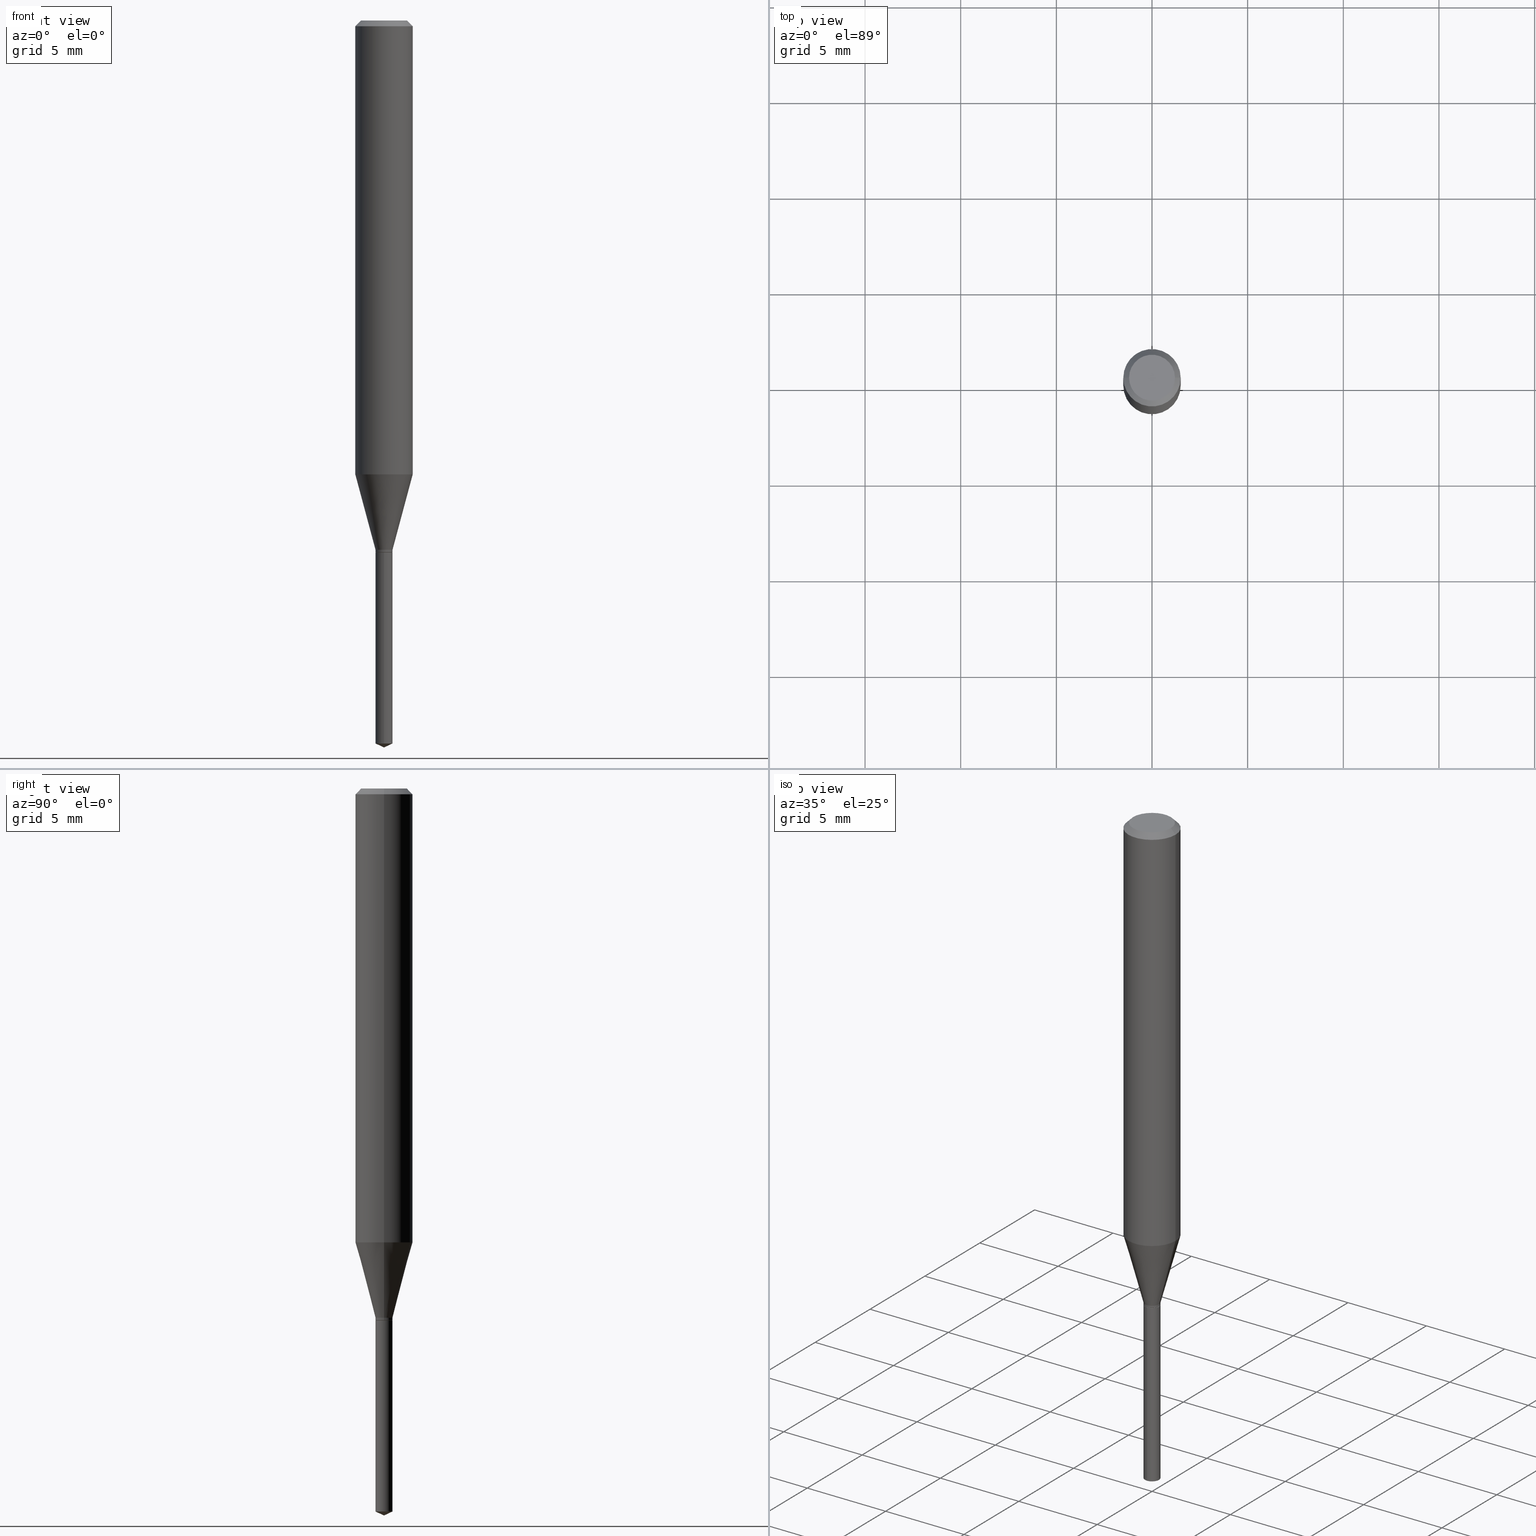
[diagram: canonical four-view strip — front | top / right | iso, engineering-drawing reading convention]
A machine part, canonical four-view strip (front | top / right | iso — engineering-drawing reading convention). The complete STEP part file that produces these views, byte-faithful:
ISO-10303-21;
HEADER;
FILE_DESCRIPTION (( 'STEP AP203' ),
    '1' );
FILE_NAME ('07467.STEP',
    '2024-04-23T21:46:06',
    ( '' ),
    ( '' ),
    'SwSTEP 2.0',
    'SolidWorks 2023',
    '' );
FILE_SCHEMA (( 'CONFIG_CONTROL_DESIGN' ));
ENDSEC;

DATA;
#1 = ORIENTED_EDGE ( 'NONE', *, *, #185, .T. ) ;
#2 = ORGANIZATION ( 'UNSPECIFIED', 'UNSPECIFIED', '' ) ;
#3 = EDGE_CURVE ( 'NONE', #408, #61, #332, .T. ) ;
#4 = CALENDAR_DATE ( 2024, 23, 4 ) ;
#5 = CARTESIAN_POINT ( 'NONE',  ( -0.01750000000000000167, -3.686956050723160015E-15, -1.089199999999999946 ) ) ;
#6 = CC_DESIGN_PERSON_AND_ORGANIZATION_ASSIGNMENT ( #7, #195, ( #340 ) ) ;
#7 = PERSON_AND_ORGANIZATION ( #150, #2 ) ;
#8 = DIRECTION ( 'NONE',  ( -1.000000000000000000, 6.982962677686265922E-15, -4.876176775795935793E-29 ) ) ;
#9 = PERSON_AND_ORGANIZATION ( #150, #2 ) ;
#10 = DIRECTION ( 'NONE',  ( 6.439704144417007476E-15, 0.9063077870366490485, 0.4226182617407009956 ) ) ;
#11 = VECTOR ( 'NONE', #127, 39.37007874015748143 ) ;
#12 = VECTOR ( 'NONE', #136, 39.37007874015748143 ) ;
#13 = LOCAL_TIME ( 17, 46, 6.000000000000000000, #82 ) ;
#14 = UNCERTAINTY_MEASURE_WITH_UNIT (LENGTH_MEASURE( 1.000000000000000082E-05 ), #258, 'distance_accuracy_value', 'NONE');
#15 = DIRECTION ( 'NONE',  ( -6.982962677686268288E-15, -1.000000000000000000, 3.520397390770518557E-15 ) ) ;
#16 = FACE_OUTER_BOUND ( 'NONE', #253, .T. ) ;
#17 = FACE_OUTER_BOUND ( 'NONE', #106, .T. ) ;
#18 = EDGE_LOOP ( 'NONE', ( #305, #204, #210, #284 ) ) ;
#19 = EDGE_CURVE ( 'NONE', #188, #484, #35, .T. ) ;
#20 = VECTOR ( 'NONE', #180, 39.37007874015747433 ) ;
#21 = AXIS2_PLACEMENT_3D ( 'NONE', #401, #34, #105 ) ;
#22 = CARTESIAN_POINT ( 'NONE',  ( -0.01750000000000000167, -3.686956050723160015E-15, -1.093999999999999861 ) ) ;
#23 = EDGE_LOOP ( 'NONE', ( #27, #190 ) ) ;
#24 = CARTESIAN_POINT ( 'NONE',  ( 8.265746106709734507E-48, -1.180129479067563789E-33, -3.380025165646692144E-19 ) ) ;
#25 = DIRECTION ( 'NONE',  ( -2.445468806185136597E-29, 3.491481338843145583E-15, 1.000000000000000000 ) ) ;
#26 = EDGE_CURVE ( 'NONE', #256, #469, #220, .T. ) ;
#27 = ORIENTED_EDGE ( 'NONE', *, *, #478, .F. ) ;
#28 = AXIS2_PLACEMENT_3D ( 'NONE', #425, #202, #119 ) ;
#29 = LINE ( 'NONE', #59, #12 ) ;
#30 = CC_DESIGN_APPROVAL ( #446, ( #169 ) ) ;
#31 = ORIENTED_EDGE ( 'NONE', *, *, #97, .F. ) ;
#32 = DIRECTION ( 'NONE',  ( -2.445468806185136597E-29, 3.491481338843145583E-15, 1.000000000000000000 ) ) ;
#33 = ORIENTED_EDGE ( 'NONE', *, *, #65, .F. ) ;
#34 = DIRECTION ( 'NONE',  ( -2.445468806185136597E-29, 3.491481338843145583E-15, 1.000000000000000000 ) ) ;
#35 = LINE ( 'NONE', #40, #198 ) ;
#36 = CC_DESIGN_PERSON_AND_ORGANIZATION_ASSIGNMENT ( #374, #43, ( #169 ) ) ;
#37 = CIRCLE ( 'NONE', #176, 0.04724000000000000421 ) ;
#38 = ORIENTED_EDGE ( 'NONE', *, *, #354, .T. ) ;
#39 = DIRECTION ( 'NONE',  ( 0.7071067811865453523, -7.319954787623248157E-15, -0.7071067811865496822 ) ) ;
#40 = CARTESIAN_POINT ( 'NONE',  ( -0.05904999999999999832, 3.711095515056362547E-16, -0.01181000000000006871 ) ) ;
#41 = CARTESIAN_POINT ( 'NONE',  ( 2.663604623696850789E-29, -3.802921474267954047E-15, -1.089199999999999946 ) ) ;
#42 = ORIENTED_EDGE ( 'NONE', *, *, #321, .T. ) ;
#43 = PERSON_AND_ORGANIZATION_ROLE ( 'design_supplier' ) ;
#44 = DIRECTION ( 'NONE',  ( -2.438088387897960049E-29, 3.491481338843145188E-15, 1.000000000000000000 ) ) ;
#45 = VECTOR ( 'NONE', #416, 39.37007874015748143 ) ;
#46 = EDGE_CURVE ( 'NONE', #301, #327, #443, .T. ) ;
#47 = DATE_TIME_ROLE ( 'classification_date' ) ;
#48 = CARTESIAN_POINT ( 'NONE',  ( -0.01750000000000000167, 1.243449787580175444E-16, -8.608136407946085539E-31 ) ) ;
#49 = EDGE_CURVE ( 'NONE', #178, #68, #463, .T. ) ;
#50 = SHAPE_DEFINITION_REPRESENTATION ( #164, #248 ) ;
#51 = DIRECTION ( 'NONE',  ( -2.445468806185136597E-29, 3.491481338843145583E-15, 1.000000000000000000 ) ) ;
#52 = ADVANCED_FACE ( 'NONE', ( #16 ), #153, .T. ) ;
#53 = DIRECTION ( 'NONE',  ( -2.445468806185136597E-29, 3.491481338843145583E-15, 1.000000000000000000 ) ) ;
#54 = AXIS2_PLACEMENT_3D ( 'NONE', #297, #116, #335 ) ;
#55 = CIRCLE ( 'NONE', #361, 0.01750000000000000167 ) ;
#56 = CARTESIAN_POINT ( 'NONE',  ( 0.04724000000000000421, -3.852183633974369345E-16, -3.380025165621689721E-19 ) ) ;
#57 = DIRECTION ( 'NONE',  ( -2.445470214571802116E-29, 3.491479321953280158E-15, 1.000000000000000000 ) ) ;
#58 = ORIENTED_EDGE ( 'NONE', *, *, #464, .T. ) ;
#59 = CARTESIAN_POINT ( 'NONE',  ( 0.05905000000000005383, -4.123439461173744271E-16, 2.879382386107502672E-30 ) ) ;
#60 = DIRECTION ( 'NONE',  ( -6.982962677686268288E-15, -1.000000000000000000, 3.520397390770518557E-15 ) ) ;
#61 = VERTEX_POINT ( 'NONE', #381 ) ;
#62 = LINE ( 'NONE', #391, #430 ) ;
#63 = ORIENTED_EDGE ( 'NONE', *, *, #330, .T. ) ;
#64 = CYLINDRICAL_SURFACE ( 'NONE', #302, 0.01750000000000000167 ) ;
#65 = EDGE_CURVE ( 'NONE', #282, #137, #384, .T. ) ;
#66 = FACE_OUTER_BOUND ( 'NONE', #482, .T. ) ;
#67 = VERTEX_POINT ( 'NONE', #56 ) ;
#68 = VERTEX_POINT ( 'NONE', #5 ) ;
#69 = CARTESIAN_POINT ( 'NONE',  ( -1.222018468594828905E-16, -0.01750000000000382500, -1.094499999999999806 ) ) ;
#70 = ORIENTED_EDGE ( 'NONE', *, *, #389, .T. ) ;
#71 = APPLICATION_PROTOCOL_DEFINITION ( 'international standard', 'config_control_design', 1994, #249 ) ;
#72 = AXIS2_PLACEMENT_3D ( 'NONE', #162, #457, #15 ) ;
#73 = ORIENTED_EDGE ( 'NONE', *, *, #46, .T. ) ;
#74 =( GEOMETRIC_REPRESENTATION_CONTEXT ( 3 ) GLOBAL_UNCERTAINTY_ASSIGNED_CONTEXT ( ( #14 ) ) GLOBAL_UNIT_ASSIGNED_CONTEXT ( ( #258, #410, #184 ) ) REPRESENTATION_CONTEXT ( 'NONE', 'WORKASPACE' ) );
#75 = EDGE_CURVE ( 'NONE', #96, #178, #269, .T. ) ;
#76 = ORIENTED_EDGE ( 'NONE', *, *, #389, .F. ) ;
#77 = PERSON_AND_ORGANIZATION ( #150, #2 ) ;
#78 = FACE_OUTER_BOUND ( 'NONE', #324, .T. ) ;
#79 = APPROVAL_ROLE ( '' ) ;
#80 = CARTESIAN_POINT ( 'NONE',  ( 2.676565608369631794E-29, -3.821426325363822773E-15, -1.094499999999999806 ) ) ;
#81 = CIRCLE ( 'NONE', #352, 0.04724000000000000421 ) ;
#82 = COORDINATED_UNIVERSAL_TIME_OFFSET ( 5, 0, .BEHIND. ) ;
#83 = CARTESIAN_POINT ( 'NONE',  ( 2.888098660104663328E-31, -4.123439461173779030E-17, -0.01181000000000006871 ) ) ;
#84 = CC_DESIGN_DATE_AND_TIME_ASSIGNMENT ( #380, #451, ( #372 ) ) ;
#85 = PLANE ( 'NONE',  #124 ) ;
#86 = PLANE ( 'NONE',  #235 ) ;
#87 = VECTOR ( 'NONE', #163, 39.37007874015748143 ) ;
#88 = CONICAL_SURFACE ( 'NONE', #475, 0.01750000000000000167, 0.2617993877991500740 ) ;
#89 = FACE_OUTER_BOUND ( 'NONE', #367, .T. ) ;
#90 = DIRECTION ( 'NONE',  ( -2.445470214571802116E-29, 3.491479321953280158E-15, 1.000000000000000000 ) ) ;
#91 = ADVANCED_FACE ( 'NONE', ( #194 ), #86, .F. ) ;
#92 = CARTESIAN_POINT ( 'NONE',  ( 2.663604623696850789E-29, -3.802921474267954047E-15, -1.089199999999999946 ) ) ;
#93 = EDGE_CURVE ( 'NONE', #96, #101, #360, .T. ) ;
#94 = CONICAL_SURFACE ( 'NONE', #279, 0.05904999999999999832, 0.7853981633974452814 ) ;
#95 = CARTESIAN_POINT ( 'NONE',  ( 1.243449787580539552E-16, 0.01749999999999617487, -1.094499999999999806 ) ) ;
#96 = VERTEX_POINT ( 'NONE', #454 ) ;
#97 = EDGE_CURVE ( 'NONE', #68, #327, #429, .T. ) ;
#98 = CARTESIAN_POINT ( 'NONE',  ( 3.658667988020872822E-29, -5.223602213574301462E-15, -1.496099999999999985 ) ) ;
#99 = ORIENTED_EDGE ( 'NONE', *, *, #152, .F. ) ;
#100 = DIRECTION ( 'NONE',  ( 1.000000000000000000, -6.982962677686276966E-15, 0.000000000000000000 ) ) ;
#101 = VERTEX_POINT ( 'NONE', #275 ) ;
#102 = CARTESIAN_POINT ( 'NONE',  ( -0.05904999999999999832, -1.231796185012244418E-15, -0.01181000000000006871 ) ) ;
#103 = ADVANCED_FACE ( 'NONE', ( #199 ), #426, .T. ) ;
#104 = ORIENTED_EDGE ( 'NONE', *, *, #120, .T. ) ;
#105 = DIRECTION ( 'NONE',  ( 1.000000000000000000, -6.982962677686276966E-15, 0.000000000000000000 ) ) ;
#106 = EDGE_LOOP ( 'NONE', ( #215, #168, #186, #174 ) ) ;
#107 = ADVANCED_FACE ( 'NONE', ( #78 ), #94, .T. ) ;
#108 = EDGE_LOOP ( 'NONE', ( #288, #363, #181 ) ) ;
#109 = EDGE_CURVE ( 'NONE', #137, #282, #423, .T. ) ;
#110 = LINE ( 'NONE', #69, #45 ) ;
#111 = AXIS2_PLACEMENT_3D ( 'NONE', #83, #51, #312 ) ;
#112 = EDGE_LOOP ( 'NONE', ( #104, #140, #223, #299 ) ) ;
#113 = CONICAL_SURFACE ( 'NONE', #353, 0.05904999999999999832, 0.7853981633974452814 ) ;
#114 = CC_DESIGN_PERSON_AND_ORGANIZATION_ASSIGNMENT ( #161, #342, ( #372 ) ) ;
#115 = COORDINATED_UNIVERSAL_TIME_OFFSET ( 5, 0, .BEHIND. ) ;
#116 = DIRECTION ( 'NONE',  ( -2.445470214571802116E-29, 3.491479321953280158E-15, 1.000000000000000000 ) ) ;
#117 = APPLICATION_CONTEXT ( 'configuration controlled 3d designs of mechanical parts and assemblies' ) ;
#118 = CALENDAR_DATE ( 2024, 23, 4 ) ;
#119 = DIRECTION ( 'NONE',  ( 1.000000000000000000, -6.982962677686276966E-15, 0.000000000000000000 ) ) ;
#120 = EDGE_CURVE ( 'NONE', #61, #408, #393, .T. ) ;
#121 = APPROVAL_ROLE ( '' ) ;
#122 = CARTESIAN_POINT ( 'NONE',  ( -1.222018468594828905E-16, -0.01750000000000382500, -1.094499999999999806 ) ) ;
#123 = ADVANCED_FACE ( 'NONE', ( #231 ), #85, .F. ) ;
#124 = AXIS2_PLACEMENT_3D ( 'NONE', #347, #383, #8 ) ;
#125 = SECURITY_CLASSIFICATION ( '', '', #191 ) ;
#126 = DIRECTION ( 'NONE',  ( -2.445468806185136597E-29, 3.491481338843145583E-15, 1.000000000000000000 ) ) ;
#127 = DIRECTION ( 'NONE',  ( -2.445468806185136877E-29, 3.491481338843145188E-15, 1.000000000000000000 ) ) ;
#128 = EDGE_CURVE ( 'NONE', #256, #282, #160, .T. ) ;
#129 = CARTESIAN_POINT ( 'NONE',  ( 2.676565608369631794E-29, -3.821426325363822773E-15, -1.094499999999999806 ) ) ;
#130 = CLOSED_SHELL ( 'NONE', ( #179, #274, #134, #165, #403 ) ) ;
#131 = FACE_OUTER_BOUND ( 'NONE', #18, .T. ) ;
#132 = ORIENTED_EDGE ( 'NONE', *, *, #464, .F. ) ;
#133 = DIRECTION ( 'NONE',  ( -6.328713451373352024E-15, -0.9063077870366461619, 0.4226182617407073239 ) ) ;
#134 = ADVANCED_FACE ( 'NONE', ( #309 ), #449, .T. ) ;
#135 = EDGE_LOOP ( 'NONE', ( #208, #373, #38, #33 ) ) ;
#136 = DIRECTION ( 'NONE',  ( -2.445468806185136877E-29, 3.491481338843145188E-15, 1.000000000000000000 ) ) ;
#137 = VERTEX_POINT ( 'NONE', #122 ) ;
#138 = CONICAL_SURFACE ( 'NONE', #212, 0.01700000000000000122, 0.7853981633974119747 ) ;
#139 = DIRECTION ( 'NONE',  ( -6.982962677686265922E-15, -1.000000000000000000, 0.000000000000000000 ) ) ;
#140 = ORIENTED_EDGE ( 'NONE', *, *, #412, .T. ) ;
#141 = CARTESIAN_POINT ( 'NONE',  ( 8.265746106709734507E-48, -1.180129479067563789E-33, -3.380025165646692144E-19 ) ) ;
#142 = EDGE_CURVE ( 'NONE', #293, #256, #419, .T. ) ;
#143 = PLANE ( 'NONE',  #213 ) ;
#144 = ORIENTED_EDGE ( 'NONE', *, *, #412, .F. ) ;
#145 = AXIS2_PLACEMENT_3D ( 'NONE', #196, #229, #343 ) ;
#146 = LINE ( 'NONE', #189, #20 ) ;
#147 = CC_DESIGN_PERSON_AND_ORGANIZATION_ASSIGNMENT ( #455, #270, ( #169 ) ) ;
#148 = DIRECTION ( 'NONE',  ( -2.445468806185136597E-29, 3.491481338843145583E-15, 1.000000000000000000 ) ) ;
#149 = ORIENTED_EDGE ( 'NONE', *, *, #75, .F. ) ;
#150 = PERSON ( 'UNSPECIFIED', 'UNSPECIFIED', 'UNSPECIFIED', ('UNSPECIFIED'), ('UNSPECIFIED'), ('UNSPECIFIED') ) ;
#151 = DIRECTION ( 'NONE',  ( -2.445468806185136877E-29, 3.491481338843145188E-15, 1.000000000000000000 ) ) ;
#152 = EDGE_CURVE ( 'NONE', #484, #436, #183, .T. ) ;
#153 = CONICAL_SURFACE ( 'NONE', #175, 0.01700000000000000122, 0.7853981633974119747 ) ;
#154 = MECHANICAL_CONTEXT ( 'NONE', #249, 'mechanical' ) ;
#155 = VECTOR ( 'NONE', #346, 39.37007874015748143 ) ;
#156 = ORIENTED_EDGE ( 'NONE', *, *, #364, .F. ) ;
#157 = DATE_AND_TIME ( #386, #294 ) ;
#158 = CARTESIAN_POINT ( 'NONE',  ( 2.676565608369631794E-29, -3.821426325363822773E-15, -1.094499999999999806 ) ) ;
#159 = EDGE_CURVE ( 'NONE', #178, #301, #376, .T. ) ;
#160 = LINE ( 'NONE', #315, #155 ) ;
#161 = PERSON_AND_ORGANIZATION ( #150, #2 ) ;
#162 = CARTESIAN_POINT ( 'NONE',  ( -9.261968845786000133E-28, 1.322362114038720264E-13, 37.87397874015748300 ) ) ;
#163 = DIRECTION ( 'NONE',  ( -0.7071067811865218156, 7.493145998870261075E-15, 0.7071067811865732189 ) ) ;
#164 = PRODUCT_DEFINITION_SHAPE ( 'NONE', 'NONE',  #372 ) ;
#165 = ADVANCED_FACE ( 'NONE', ( #281 ), #64, .T. ) ;
#166 = DIRECTION ( 'NONE',  ( -1.000000000000000000, 6.982962677686266711E-15, 0.000000000000000000 ) ) ;
#167 = DIRECTION ( 'NONE',  ( -2.445468806185136597E-29, 3.491481338843145583E-15, 1.000000000000000000 ) ) ;
#168 = ORIENTED_EDGE ( 'NONE', *, *, #128, .T. ) ;
#169 = PRODUCT_DEFINITION_FORMATION_WITH_SPECIFIED_SOURCE ( 'ANY', '', #340, .NOT_KNOWN. ) ;
#170 = CARTESIAN_POINT ( 'NONE',  ( 3.638710470486883638E-29, -5.195112609003218678E-15, -1.487939615982287300 ) ) ;
#171 = DIRECTION ( 'NONE',  ( -2.445468806185136597E-29, 3.491481338843145583E-15, 1.000000000000000000 ) ) ;
#172 = EDGE_LOOP ( 'NONE', ( #440, #242, #73, #31 ) ) ;
#173 = LINE ( 'NONE', #323, #237 ) ;
#174 = ORIENTED_EDGE ( 'NONE', *, *, #354, .F. ) ;
#175 = AXIS2_PLACEMENT_3D ( 'NONE', #277, #53, #314 ) ;
#176 = AXIS2_PLACEMENT_3D ( 'NONE', #24, #171, #319 ) ;
#177 = LINE ( 'NONE', #326, #368 ) ;
#178 = VERTEX_POINT ( 'NONE', #22 ) ;
#179 = ADVANCED_FACE ( 'NONE', ( #17 ), #211, .T. ) ;
#180 = DIRECTION ( 'NONE',  ( -0.2588190451025213501, 5.211531920934551042E-15, 0.9659258262890682012 ) ) ;
#181 = ORIENTED_EDGE ( 'NONE', *, *, #26, .F. ) ;
#182 = ORIENTED_EDGE ( 'NONE', *, *, #19, .F. ) ;
#183 = CIRCLE ( 'NONE', #111, 0.05904999999999999832 ) ;
#184 =( NAMED_UNIT ( * ) SI_UNIT ( $, .STERADIAN. ) SOLID_ANGLE_UNIT ( ) );
#185 = EDGE_CURVE ( 'NONE', #61, #436, #29, .T. ) ;
#186 = ORIENTED_EDGE ( 'NONE', *, *, #109, .F. ) ;
#187 = CARTESIAN_POINT ( 'NONE',  ( 2.888098660104663328E-31, -4.123439461173779030E-17, -0.01181000000000006871 ) ) ;
#188 = VERTEX_POINT ( 'NONE', #437 ) ;
#189 = CARTESIAN_POINT ( 'NONE',  ( -0.01750000000000000167, -3.678576495509936798E-15, -1.089199999999999946 ) ) ;
#190 = ORIENTED_EDGE ( 'NONE', *, *, #93, .F. ) ;
#191 = SECURITY_CLASSIFICATION_LEVEL ( 'unclassified' ) ;
#192 = CARTESIAN_POINT ( 'NONE',  ( 0.000000000000000000, 0.000000000000000000, 0.000000000000000000 ) ) ;
#193 = CALENDAR_DATE ( 2024, 23, 4 ) ;
#194 = FACE_OUTER_BOUND ( 'NONE', #23, .T. ) ;
#195 = PERSON_AND_ORGANIZATION_ROLE ( 'design_owner' ) ;
#196 = CARTESIAN_POINT ( 'NONE',  ( 2.284393818935379026E-29, -3.261508946345431277E-15, -0.9341332889455130628 ) ) ;
#197 = APPROVAL_DATE_TIME ( #265, #446 ) ;
#198 = VECTOR ( 'NONE', #259, 39.37007874015748143 ) ;
#199 = FACE_OUTER_BOUND ( 'NONE', #473, .T. ) ;
#200 = AXIS2_PLACEMENT_3D ( 'NONE', #209, #207, #390 ) ;
#201 = CIRCLE ( 'NONE', #21, 0.01750000000000000167 ) ;
#202 = DIRECTION ( 'NONE',  ( -2.445468806185136597E-29, 3.491481338843145583E-15, 1.000000000000000000 ) ) ;
#203 = DIRECTION ( 'NONE',  ( -6.982962677686265922E-15, -1.000000000000000000, 0.000000000000000000 ) ) ;
#204 = ORIENTED_EDGE ( 'NONE', *, *, #364, .T. ) ;
#205 = ADVANCED_FACE ( 'NONE', ( #433 ), #432, .T. ) ;
#206 = CARTESIAN_POINT ( 'NONE',  ( 0.000000000000000000, 0.000000000000000000, 0.000000000000000000 ) ) ;
#207 = DIRECTION ( 'NONE',  ( -2.445468806185136597E-29, 3.491481338843145583E-15, 1.000000000000000000 ) ) ;
#208 = ORIENTED_EDGE ( 'NONE', *, *, #128, .F. ) ;
#209 = CARTESIAN_POINT ( 'NONE',  ( 2.888098660104663328E-31, -4.123439461173779030E-17, -0.01181000000000006871 ) ) ;
#210 = ORIENTED_EDGE ( 'NONE', *, *, #120, .F. ) ;
#211 = CYLINDRICAL_SURFACE ( 'NONE', #262, 0.01750000000000000167 ) ;
#212 = AXIS2_PLACEMENT_3D ( 'NONE', #392, #351, #431 ) ;
#213 = AXIS2_PLACEMENT_3D ( 'NONE', #483, #290, #444 ) ;
#214 = CARTESIAN_POINT ( 'NONE',  ( -0.05905000000000010241, -2.841933460879091389E-15, -0.9341332889455130628 ) ) ;
#215 = ORIENTED_EDGE ( 'NONE', *, *, #266, .T. ) ;
#216 = FACE_OUTER_BOUND ( 'NONE', #264, .T. ) ;
#217 = EDGE_LOOP ( 'NONE', ( #350, #224, #404, #417 ) ) ;
#218 = FACE_OUTER_BOUND ( 'NONE', #480, .T. ) ;
#219 = ORIENTED_EDGE ( 'NONE', *, *, #109, .T. ) ;
#220 = CIRCLE ( 'NONE', #54, 0.01750000000000000167 ) ;
#221 = CC_DESIGN_APPROVAL ( #396, ( #372 ) ) ;
#222 = CARTESIAN_POINT ( 'NONE',  ( 0.05904999999999999832, -4.535783407291118600E-16, -0.01181000000000006871 ) ) ;
#223 = ORIENTED_EDGE ( 'NONE', *, *, #292, .F. ) ;
#224 = ORIENTED_EDGE ( 'NONE', *, *, #49, .T. ) ;
#225 = CARTESIAN_POINT ( 'NONE',  ( 0.000000000000000000, 0.000000000000000000, 0.000000000000000000 ) ) ;
#226 = CARTESIAN_POINT ( 'NONE',  ( 2.888098660104663328E-31, -4.123439461173779030E-17, -0.01181000000000006871 ) ) ;
#227 = EDGE_CURVE ( 'NONE', #293, #469, #62, .T. ) ;
#228 = AXIS2_PLACEMENT_3D ( 'NONE', #41, #438, #100 ) ;
#229 = DIRECTION ( 'NONE',  ( -2.445468806185136597E-29, 3.491481338843145583E-15, 1.000000000000000000 ) ) ;
#230 = DATE_AND_TIME ( #193, #13 ) ;
#231 = FACE_OUTER_BOUND ( 'NONE', #329, .T. ) ;
#232 = EDGE_CURVE ( 'NONE', #327, #68, #271, .T. ) ;
#233 = DIRECTION ( 'NONE',  ( -2.445468806185136597E-29, 3.491481338843145583E-15, 1.000000000000000000 ) ) ;
#234 = DIRECTION ( 'NONE',  ( 0.000000000000000000, 0.000000000000000000, 1.000000000000000000 ) ) ;
#235 = AXIS2_PLACEMENT_3D ( 'NONE', #158, #44, #344 ) ;
#236 = DIRECTION ( 'NONE',  ( 1.000000000000000000, -6.982962677686274599E-15, 0.000000000000000000 ) ) ;
#237 = VECTOR ( 'NONE', #250, 39.37007874015747433 ) ;
#238 = CARTESIAN_POINT ( 'NONE',  ( -9.261968845786000133E-28, 1.322362114038720264E-13, 37.87397874015748300 ) ) ;
#239 = DIRECTION ( 'NONE',  ( -6.982962677686265922E-15, -1.000000000000000000, 0.000000000000000000 ) ) ;
#240 = ADVANCED_FACE ( 'NONE', ( #359 ), #138, .T. ) ;
#241 = DIRECTION ( 'NONE',  ( 1.000000000000000000, -6.982962677686276966E-15, 0.000000000000000000 ) ) ;
#242 = ORIENTED_EDGE ( 'NONE', *, *, #159, .T. ) ;
#243 = CIRCLE ( 'NONE', #200, 0.05904999999999999832 ) ;
#244 = AXIS2_PLACEMENT_3D ( 'NONE', #206, #167, #278 ) ;
#245 = LOCAL_TIME ( 17, 46, 6.000000000000000000, #115 ) ;
#246 = CARTESIAN_POINT ( 'NONE',  ( 0.000000000000000000, 0.000000000000000000, 0.000000000000000000 ) ) ;
#247 = ORIENTED_EDGE ( 'NONE', *, *, #65, .T. ) ;
#248 = ADVANCED_BREP_SHAPE_REPRESENTATION ( '07467', ( #462, #466, #450 ), #74 ) ;
#249 = APPLICATION_CONTEXT ( 'configuration controlled 3d designs of mechanical parts and assemblies' ) ;
#250 = DIRECTION ( 'NONE',  ( 0.2588190451025213501, 1.565188264969621968E-15, 0.9659258262890682012 ) ) ;
#251 = ORIENTED_EDGE ( 'NONE', *, *, #296, .F. ) ;
#252 = LINE ( 'NONE', #295, #311 ) ;
#253 = EDGE_LOOP ( 'NONE', ( #445, #452, #322, #337 ) ) ;
#254 = AXIS2_PLACEMENT_3D ( 'NONE', #298, #486, #481 ) ;
#255 = LENGTH_MEASURE_WITH_UNIT ( LENGTH_MEASURE( 0.02539999999999999897 ), #300 );
#256 = VERTEX_POINT ( 'NONE', #476 ) ;
#257 = ADVANCED_FACE ( 'NONE', ( #131 ), #88, .T. ) ;
#258 =( CONVERSION_BASED_UNIT ( 'INCH', #255 ) LENGTH_UNIT ( ) NAMED_UNIT ( #465 ) );
#259 = DIRECTION ( 'NONE',  ( -0.7071067811865453523, 2.468850131082234184E-15, -0.7071067811865496822 ) ) ;
#260 = CARTESIAN_POINT ( 'NONE',  ( 2.284393818935379026E-29, -3.261508946345431277E-15, -0.9341332889455130628 ) ) ;
#261 = VECTOR ( 'NONE', #151, 39.37007874015748143 ) ;
#262 = AXIS2_PLACEMENT_3D ( 'NONE', #316, #57, #203 ) ;
#263 = DIRECTION ( 'NONE',  ( 0.7071067811865218156, -2.468850131081987665E-15, 0.7071067811865732189 ) ) ;
#264 = EDGE_LOOP ( 'NONE', ( #156, #471, #42, #413 ) ) ;
#265 = DATE_AND_TIME ( #118, #245 ) ;
#266 = EDGE_CURVE ( 'NONE', #469, #256, #55, .T. ) ;
#267 = CARTESIAN_POINT ( 'NONE',  ( 3.658668015054778287E-29, -5.223602213574301462E-15, -1.496099999999999985 ) ) ;
#268 = PERSON_AND_ORGANIZATION ( #150, #2 ) ;
#269 = LINE ( 'NONE', #379, #87 ) ;
#270 = PERSON_AND_ORGANIZATION_ROLE ( 'creator' ) ;
#271 = CIRCLE ( 'NONE', #405, 0.01750000000000000167 ) ;
#272 = CARTESIAN_POINT ( 'NONE',  ( 2.676565608369631794E-29, -3.821426325363822773E-15, -1.094499999999999806 ) ) ;
#273 = AXIS2_PLACEMENT_3D ( 'NONE', #328, #32, #439 ) ;
#274 = ADVANCED_FACE ( 'NONE', ( #89 ), #385, .T. ) ;
#275 = CARTESIAN_POINT ( 'NONE',  ( 0.01700000000000000122, -3.940136690884488960E-15, -1.094499999999999806 ) ) ;
#276 = APPLICATION_PROTOCOL_DEFINITION ( 'international standard', 'config_control_design', 1994, #117 ) ;
#277 = CARTESIAN_POINT ( 'NONE',  ( 2.676565608369631794E-29, -3.821426325363822773E-15, -1.094499999999999806 ) ) ;
#278 = DIRECTION ( 'NONE',  ( 1.000000000000000000, -6.982962677686265922E-15, 4.876176775795936353E-29 ) ) ;
#279 = AXIS2_PLACEMENT_3D ( 'NONE', #226, #339, #166 ) ;
#280 = DIRECTION ( 'NONE',  ( 1.000000000000000000, -6.982962677686276966E-15, 0.000000000000000000 ) ) ;
#281 = FACE_OUTER_BOUND ( 'NONE', #135, .T. ) ;
#282 = VERTEX_POINT ( 'NONE', #95 ) ;
#283 = DIRECTION ( 'NONE',  ( 1.000000000000000000, -6.982962677686276966E-15, 0.000000000000000000 ) ) ;
#284 = ORIENTED_EDGE ( 'NONE', *, *, #321, .F. ) ;
#285 = VECTOR ( 'NONE', #10, 39.37007874015748854 ) ;
#286 = DESIGN_CONTEXT ( 'detailed design', #117, 'design' ) ;
#287 = DIRECTION ( 'NONE',  ( -2.445468806185136597E-29, 3.491481338843145583E-15, 1.000000000000000000 ) ) ;
#288 = ORIENTED_EDGE ( 'NONE', *, *, #142, .F. ) ;
#289 = PRODUCT_RELATED_PRODUCT_CATEGORY ( 'detail', '', ( #340 ) ) ;
#290 = DIRECTION ( 'NONE',  ( 2.445470214571801836E-29, -3.491479321953280158E-15, -1.000000000000000000 ) ) ;
#291 = CARTESIAN_POINT ( 'NONE',  ( 0.05904999999999999832, -4.463468013801466955E-16, -0.01181000000000006871 ) ) ;
#292 = EDGE_CURVE ( 'NONE', #436, #484, #243, .T. ) ;
#293 = VERTEX_POINT ( 'NONE', #98 ) ;
#294 = LOCAL_TIME ( 17, 46, 6.000000000000000000, #308 ) ;
#295 = CARTESIAN_POINT ( 'NONE',  ( -0.05905000000000005383, 4.195754854663395423E-16, -2.904631170795524694E-30 ) ) ;
#296 = EDGE_CURVE ( 'NONE', #188, #67, #37, .T. ) ;
#297 = CARTESIAN_POINT ( 'NONE',  ( 3.638710470486883638E-29, -5.195112609003218678E-15, -1.487939615982287300 ) ) ;
#298 = CARTESIAN_POINT ( 'NONE',  ( 0.000000000000000000, 0.000000000000000000, 0.000000000000000000 ) ) ;
#299 = ORIENTED_EDGE ( 'NONE', *, *, #185, .F. ) ;
#300 =( LENGTH_UNIT ( ) NAMED_UNIT ( * ) SI_UNIT ( $, .METRE. ) );
#301 = VERTEX_POINT ( 'NONE', #470 ) ;
#302 = AXIS2_PLACEMENT_3D ( 'NONE', #129, #349, #239 ) ;
#303 = LOCAL_TIME ( 17, 46, 6.000000000000000000, #424 ) ;
#304 = APPROVAL_DATE_TIME ( #157, #396 ) ;
#305 = ORIENTED_EDGE ( 'NONE', *, *, #232, .T. ) ;
#306 = DIRECTION ( 'NONE',  ( 1.000000000000000000, 0.000000000000000000, 0.000000000000000000 ) ) ;
#307 = DIRECTION ( 'NONE',  ( -6.982962677686265922E-15, -1.000000000000000000, 0.000000000000000000 ) ) ;
#308 = COORDINATED_UNIVERSAL_TIME_OFFSET ( 5, 0, .BEHIND. ) ;
#309 = FACE_OUTER_BOUND ( 'NONE', #108, .T. ) ;
#310 = AXIS2_PLACEMENT_3D ( 'NONE', #246, #397, #356 ) ;
#311 = VECTOR ( 'NONE', #442, 39.37007874015748143 ) ;
#312 = DIRECTION ( 'NONE',  ( 1.000000000000000000, -6.982962677686266711E-15, 0.000000000000000000 ) ) ;
#313 = CC_DESIGN_APPROVAL ( #409, ( #125 ) ) ;
#314 = DIRECTION ( 'NONE',  ( 1.000000000000000000, -6.982962677686274599E-15, 0.000000000000000000 ) ) ;
#315 = CARTESIAN_POINT ( 'NONE',  ( 1.243449787580442917E-16, 0.01749999999999617833, -1.094499999999999806 ) ) ;
#316 = CARTESIAN_POINT ( 'NONE',  ( 2.676565608369631794E-29, -3.821426325363822773E-15, -1.094499999999999806 ) ) ;
#317 = AXIS2_PLACEMENT_3D ( 'NONE', #80, #375, #388 ) ;
#318 = ADVANCED_FACE ( 'NONE', ( #320 ), #472, .T. ) ;
#319 = DIRECTION ( 'NONE',  ( 1.000000000000000000, -6.982962677686266711E-15, 4.876185090822587894E-29 ) ) ;
#320 = FACE_OUTER_BOUND ( 'NONE', #172, .T. ) ;
#321 = EDGE_CURVE ( 'NONE', #327, #61, #173, .T. ) ;
#322 = ORIENTED_EDGE ( 'NONE', *, *, #422, .F. ) ;
#323 = CARTESIAN_POINT ( 'NONE',  ( 0.01750000000000000167, -3.925123321127464030E-15, -1.089199999999999946 ) ) ;
#324 = EDGE_LOOP ( 'NONE', ( #132, #251, #358, #487 ) ) ;
#325 = AXIS2_PLACEMENT_3D ( 'NONE', #192, #233, #467 ) ;
#326 = CARTESIAN_POINT ( 'NONE',  ( 0.01700000000000000122, -3.940136690884488960E-15, -1.094499999999999806 ) ) ;
#327 = VERTEX_POINT ( 'NONE', #399 ) ;
#328 = CARTESIAN_POINT ( 'NONE',  ( 2.676565608369631794E-29, -3.821426325363822773E-15, -1.094499999999999806 ) ) ;
#329 = EDGE_LOOP ( 'NONE', ( #331, #70 ) ) ;
#330 = EDGE_CURVE ( 'NONE', #101, #301, #177, .T. ) ;
#331 = ORIENTED_EDGE ( 'NONE', *, *, #296, .T. ) ;
#332 = CIRCLE ( 'NONE', #474, 0.05905000000000010935 ) ;
#333 = ORIENTED_EDGE ( 'NONE', *, *, #142, .T. ) ;
#334 = DIRECTION ( 'NONE',  ( -1.000000000000000000, 6.982962677686266711E-15, 0.000000000000000000 ) ) ;
#335 = DIRECTION ( 'NONE',  ( -6.982962677686265922E-15, -1.000000000000000000, 0.000000000000000000 ) ) ;
#336 = APPROVAL_DATE_TIME ( #230, #409 ) ;
#337 = ORIENTED_EDGE ( 'NONE', *, *, #330, .F. ) ;
#338 = CALENDAR_DATE ( 2024, 23, 4 ) ;
#339 = DIRECTION ( 'NONE',  ( 2.445468806185136597E-29, -3.491481338843145583E-15, -1.000000000000000000 ) ) ;
#340 = PRODUCT ( '07467', '07467', '', ( #154 ) ) ;
#341 = ADVANCED_FACE ( 'NONE', ( #479 ), #371, .T. ) ;
#342 = PERSON_AND_ORGANIZATION_ROLE ( 'creator' ) ;
#343 = DIRECTION ( 'NONE',  ( 1.000000000000000000, -6.982962677686267499E-15, 0.000000000000000000 ) ) ;
#344 = DIRECTION ( 'NONE',  ( 1.000000000000000000, -6.982962677686265922E-15, 4.876176775795935793E-29 ) ) ;
#345 = COORDINATED_UNIVERSAL_TIME_OFFSET ( 5, 0, .BEHIND. ) ;
#346 = DIRECTION ( 'NONE',  ( -2.445470214571802396E-29, 3.491479321953280158E-15, 1.000000000000000000 ) ) ;
#347 = CARTESIAN_POINT ( 'NONE',  ( 4.132873053354867254E-48, -5.900647395337818946E-34, -1.690012582823346072E-19 ) ) ;
#348 = ADVANCED_FACE ( 'NONE', ( #216 ), #441, .T. ) ;
#349 = DIRECTION ( 'NONE',  ( -2.445470214571802116E-29, 3.491479321953280158E-15, 1.000000000000000000 ) ) ;
#350 = ORIENTED_EDGE ( 'NONE', *, *, #422, .T. ) ;
#351 = DIRECTION ( 'NONE',  ( -2.445468806185136597E-29, 3.491481338843145583E-15, 1.000000000000000000 ) ) ;
#352 = AXIS2_PLACEMENT_3D ( 'NONE', #141, #365, #369 ) ;
#353 = AXIS2_PLACEMENT_3D ( 'NONE', #187, #362, #334 ) ;
#354 = EDGE_CURVE ( 'NONE', #469, #137, #110, .T. ) ;
#355 = DIRECTION ( 'NONE',  ( -2.445468806185136597E-29, 3.491481338843145583E-15, 1.000000000000000000 ) ) ;
#356 = DIRECTION ( 'NONE',  ( 1.000000000000000000, -6.982962677686265922E-15, 4.876176775795936353E-29 ) ) ;
#357 = CC_DESIGN_DATE_AND_TIME_ASSIGNMENT ( #453, #47, ( #125 ) ) ;
#358 = ORIENTED_EDGE ( 'NONE', *, *, #19, .T. ) ;
#359 = FACE_OUTER_BOUND ( 'NONE', #400, .T. ) ;
#360 = CIRCLE ( 'NONE', #402, 0.01700000000000000122 ) ;
#361 = AXIS2_PLACEMENT_3D ( 'NONE', #170, #435, #139 ) ;
#362 = DIRECTION ( 'NONE',  ( 2.445468806185136597E-29, -3.491481338843145583E-15, -1.000000000000000000 ) ) ;
#363 = ORIENTED_EDGE ( 'NONE', *, *, #227, .T. ) ;
#364 = EDGE_CURVE ( 'NONE', #68, #408, #146, .T. ) ;
#365 = DIRECTION ( 'NONE',  ( -2.445468806185136597E-29, 3.491481338843145583E-15, 1.000000000000000000 ) ) ;
#366 = ORIENTED_EDGE ( 'NONE', *, *, #266, .F. ) ;
#367 = EDGE_LOOP ( 'NONE', ( #395, #333, #366 ) ) ;
#368 = VECTOR ( 'NONE', #263, 39.37007874015748143 ) ;
#369 = DIRECTION ( 'NONE',  ( 1.000000000000000000, -6.982962677686266711E-15, 4.876185090822587894E-29 ) ) ;
#370 = DIRECTION ( 'NONE',  ( 1.000000000000000000, -6.982962677686267499E-15, 0.000000000000000000 ) ) ;
#371 = CYLINDRICAL_SURFACE ( 'NONE', #254, 0.05905000000000005383 ) ;
#372 = PRODUCT_DEFINITION ( 'UNKNOWN', '', #169, #286 ) ;
#373 = ORIENTED_EDGE ( 'NONE', *, *, #26, .T. ) ;
#374 = PERSON_AND_ORGANIZATION ( #150, #2 ) ;
#375 = DIRECTION ( 'NONE',  ( -2.445470214571802116E-29, 3.491479321953280158E-15, 1.000000000000000000 ) ) ;
#376 = CIRCLE ( 'NONE', #458, 0.01750000000000000167 ) ;
#377 = LOCAL_TIME ( 17, 46, 6.000000000000000000, #345 ) ;
#378 = PERSON_AND_ORGANIZATION ( #150, #2 ) ;
#379 = CARTESIAN_POINT ( 'NONE',  ( -0.01700000000000000122, -3.700634060284605634E-15, -1.094499999999999806 ) ) ;
#380 = DATE_AND_TIME ( #338, #377 ) ;
#381 = CARTESIAN_POINT ( 'NONE',  ( 0.05905000000000010241, -3.673852892462806197E-15, -0.9341332889455130628 ) ) ;
#382 = PERSON_AND_ORGANIZATION_ROLE ( 'classification_officer' ) ;
#383 = DIRECTION ( 'NONE',  ( 2.438088387897960049E-29, -3.491481338843145188E-15, -1.000000000000000000 ) ) ;
#384 = CIRCLE ( 'NONE', #448, 0.01750000000000000167 ) ;
#385 = CONICAL_SURFACE ( 'NONE', #415, 84.42940631927278616, 1.134464013796308901 ) ;
#386 = CALENDAR_DATE ( 2024, 23, 4 ) ;
#387 = APPROVAL_PERSON_ORGANIZATION ( #9, #396, #121 ) ;
#388 = DIRECTION ( 'NONE',  ( -6.982962677686265922E-15, -1.000000000000000000, 0.000000000000000000 ) ) ;
#389 = EDGE_CURVE ( 'NONE', #67, #188, #81, .T. ) ;
#390 = DIRECTION ( 'NONE',  ( 1.000000000000000000, -6.982962677686266711E-15, 0.000000000000000000 ) ) ;
#391 = CARTESIAN_POINT ( 'NONE',  ( 3.658664905062460986E-29, -5.223606628546217219E-15, -1.496099999999999985 ) ) ;
#392 = CARTESIAN_POINT ( 'NONE',  ( 2.676565608369631794E-29, -3.821426325363822773E-15, -1.094499999999999806 ) ) ;
#393 = CIRCLE ( 'NONE', #145, 0.05905000000000010935 ) ;
#394 = CIRCLE ( 'NONE', #273, 0.01700000000000000122 ) ;
#395 = ORIENTED_EDGE ( 'NONE', *, *, #227, .F. ) ;
#396 = APPROVAL ( #418, 'UNSPECIFIED' ) ;
#397 = DIRECTION ( 'NONE',  ( -2.445468806185136597E-29, 3.491481338843145583E-15, 1.000000000000000000 ) ) ;
#398 = ORIENTED_EDGE ( 'NONE', *, *, #3, .T. ) ;
#399 = CARTESIAN_POINT ( 'NONE',  ( 0.01750000000000000167, -3.925123321127464030E-15, -1.089199999999999946 ) ) ;
#400 = EDGE_LOOP ( 'NONE', ( #149, #489, #63, #447 ) ) ;
#401 = CARTESIAN_POINT ( 'NONE',  ( 2.675342873966538993E-29, -3.819680584694400481E-15, -1.093999999999999861 ) ) ;
#402 = AXIS2_PLACEMENT_3D ( 'NONE', #421, #126, #236 ) ;
#403 = ADVANCED_FACE ( 'NONE', ( #66 ), #143, .F. ) ;
#404 = ORIENTED_EDGE ( 'NONE', *, *, #232, .F. ) ;
#405 = AXIS2_PLACEMENT_3D ( 'NONE', #468, #355, #283 ) ;
#406 = APPROVAL_PERSON_ORGANIZATION ( #268, #409, #79 ) ;
#407 = LINE ( 'NONE', #291, #485 ) ;
#408 = VERTEX_POINT ( 'NONE', #214 ) ;
#409 = APPROVAL ( #420, 'UNSPECIFIED' ) ;
#410 =( NAMED_UNIT ( * ) PLANE_ANGLE_UNIT ( ) SI_UNIT ( $, .RADIAN. ) );
#411 = CARTESIAN_POINT ( 'NONE',  ( 0.01750000000000000167, -1.222018468595096625E-16, 8.533309357642889039E-31 ) ) ;
#412 = EDGE_CURVE ( 'NONE', #408, #484, #252, .T. ) ;
#413 = ORIENTED_EDGE ( 'NONE', *, *, #3, .F. ) ;
#414 = CLOSED_SHELL ( 'NONE', ( #52, #427, #341, #257, #205, #318, #348, #103, #107, #123, #91, #240 ) ) ;
#415 = AXIS2_PLACEMENT_3D ( 'NONE', #238, #90, #60 ) ;
#416 = DIRECTION ( 'NONE',  ( -2.445470214571802396E-29, 3.491479321953280158E-15, 1.000000000000000000 ) ) ;
#417 = ORIENTED_EDGE ( 'NONE', *, *, #46, .F. ) ;
#418 = APPROVAL_STATUS ( 'not_yet_approved' ) ;
#419 = LINE ( 'NONE', #267, #285 ) ;
#420 = APPROVAL_STATUS ( 'not_yet_approved' ) ;
#421 = CARTESIAN_POINT ( 'NONE',  ( 2.676565608369631794E-29, -3.821426325363822773E-15, -1.094499999999999806 ) ) ;
#422 = EDGE_CURVE ( 'NONE', #301, #178, #201, .T. ) ;
#423 = CIRCLE ( 'NONE', #317, 0.01750000000000000167 ) ;
#424 = COORDINATED_UNIVERSAL_TIME_OFFSET ( 5, 0, .BEHIND. ) ;
#425 = CARTESIAN_POINT ( 'NONE',  ( 2.663604623696850789E-29, -3.802921474267954047E-15, -1.089199999999999946 ) ) ;
#426 = CYLINDRICAL_SURFACE ( 'NONE', #325, 0.05905000000000005383 ) ;
#427 = ADVANCED_FACE ( 'NONE', ( #218 ), #113, .T. ) ;
#428 = DIRECTION ( 'NONE',  ( -2.445470214571802116E-29, 3.491479321953280158E-15, 1.000000000000000000 ) ) ;
#429 = CIRCLE ( 'NONE', #28, 0.01750000000000000167 ) ;
#430 = VECTOR ( 'NONE', #133, 39.37007874015748854 ) ;
#431 = DIRECTION ( 'NONE',  ( 1.000000000000000000, -6.982962677686274599E-15, 0.000000000000000000 ) ) ;
#432 = CYLINDRICAL_SURFACE ( 'NONE', #244, 0.01750000000000000167 ) ;
#433 = FACE_OUTER_BOUND ( 'NONE', #217, .T. ) ;
#434 = ORIENTED_EDGE ( 'NONE', *, *, #292, .T. ) ;
#435 = DIRECTION ( 'NONE',  ( -2.445470214571802116E-29, 3.491479321953280158E-15, 1.000000000000000000 ) ) ;
#436 = VERTEX_POINT ( 'NONE', #222 ) ;
#437 = CARTESIAN_POINT ( 'NONE',  ( -0.04724000000000000421, 3.504923541997677355E-16, -3.380025165670481712E-19 ) ) ;
#438 = DIRECTION ( 'NONE',  ( -2.445468806185136597E-29, 3.491481338843145583E-15, 1.000000000000000000 ) ) ;
#439 = DIRECTION ( 'NONE',  ( 1.000000000000000000, -6.982962677686274599E-15, 0.000000000000000000 ) ) ;
#440 = ORIENTED_EDGE ( 'NONE', *, *, #49, .F. ) ;
#441 = CONICAL_SURFACE ( 'NONE', #228, 0.01750000000000000167, 0.2617993877991500740 ) ;
#442 = DIRECTION ( 'NONE',  ( -2.445468806185136877E-29, 3.491481338843145188E-15, 1.000000000000000000 ) ) ;
#443 = LINE ( 'NONE', #411, #261 ) ;
#444 = DIRECTION ( 'NONE',  ( 6.982962677686265922E-15, 1.000000000000000000, -3.491479321953280158E-15 ) ) ;
#445 = ORIENTED_EDGE ( 'NONE', *, *, #478, .T. ) ;
#446 = APPROVAL ( #461, 'UNSPECIFIED' ) ;
#447 = ORIENTED_EDGE ( 'NONE', *, *, #159, .F. ) ;
#448 = AXIS2_PLACEMENT_3D ( 'NONE', #272, #428, #307 ) ;
#449 = CONICAL_SURFACE ( 'NONE', #72, 84.42940631927278616, 1.134464013796308901 ) ;
#450 = AXIS2_PLACEMENT_3D ( 'NONE', #225, #234, #306 ) ;
#451 = DATE_TIME_ROLE ( 'creation_date' ) ;
#452 = ORIENTED_EDGE ( 'NONE', *, *, #75, .T. ) ;
#453 = DATE_AND_TIME ( #4, #303 ) ;
#454 = CARTESIAN_POINT ( 'NONE',  ( -0.01700000000000000122, -3.697984833110494433E-15, -1.094499999999999806 ) ) ;
#455 = PERSON_AND_ORGANIZATION ( #150, #2 ) ;
#456 = CC_DESIGN_PERSON_AND_ORGANIZATION_ASSIGNMENT ( #378, #382, ( #125 ) ) ;
#457 = DIRECTION ( 'NONE',  ( -2.445470214571802116E-29, 3.491479321953280158E-15, 1.000000000000000000 ) ) ;
#458 = AXIS2_PLACEMENT_3D ( 'NONE', #460, #287, #241 ) ;
#459 = CC_DESIGN_SECURITY_CLASSIFICATION ( #125, ( #169 ) ) ;
#460 = CARTESIAN_POINT ( 'NONE',  ( 2.675342873966538993E-29, -3.819680584694400481E-15, -1.093999999999999861 ) ) ;
#461 = APPROVAL_STATUS ( 'not_yet_approved' ) ;
#462 = MANIFOLD_SOLID_BREP ( 'Body-Move/Copy2[1]', #130 ) ;
#463 = LINE ( 'NONE', #48, #11 ) ;
#464 = EDGE_CURVE ( 'NONE', #67, #436, #407, .T. ) ;
#465 = DIMENSIONAL_EXPONENTS ( 1.000000000000000000, 0.000000000000000000, 0.000000000000000000, 0.000000000000000000, 0.000000000000000000, 0.000000000000000000, 0.000000000000000000 ) ;
#466 = MANIFOLD_SOLID_BREP ( 'Body-Move/Copy2[2]', #414 ) ;
#467 = DIRECTION ( 'NONE',  ( 1.000000000000000000, -6.982962677686266711E-15, 4.876176775795935793E-29 ) ) ;
#468 = CARTESIAN_POINT ( 'NONE',  ( 2.663604623696850789E-29, -3.802921474267954047E-15, -1.089199999999999946 ) ) ;
#469 = VERTEX_POINT ( 'NONE', #488 ) ;
#470 = CARTESIAN_POINT ( 'NONE',  ( 0.01750000000000000167, -3.941882431553910464E-15, -1.093999999999999861 ) ) ;
#471 = ORIENTED_EDGE ( 'NONE', *, *, #97, .T. ) ;
#472 = CYLINDRICAL_SURFACE ( 'NONE', #310, 0.01750000000000000167 ) ;
#473 = EDGE_LOOP ( 'NONE', ( #144, #398, #1, #99 ) ) ;
#474 = AXIS2_PLACEMENT_3D ( 'NONE', #260, #148, #370 ) ;
#475 = AXIS2_PLACEMENT_3D ( 'NONE', #92, #25, #280 ) ;
#476 = CARTESIAN_POINT ( 'NONE',  ( 1.243449787580539059E-16, 0.01749999999999480790, -1.487939615982287300 ) ) ;
#477 = APPROVAL_PERSON_ORGANIZATION ( #77, #446, #490 ) ;
#478 = EDGE_CURVE ( 'NONE', #101, #96, #394, .T. ) ;
#479 = FACE_OUTER_BOUND ( 'NONE', #112, .T. ) ;
#480 = EDGE_LOOP ( 'NONE', ( #76, #58, #434, #182 ) ) ;
#481 = DIRECTION ( 'NONE',  ( 1.000000000000000000, -6.982962677686266711E-15, 4.876176775795935793E-29 ) ) ;
#482 = EDGE_LOOP ( 'NONE', ( #219, #247 ) ) ;
#483 = CARTESIAN_POINT ( 'NONE',  ( 2.676565608369631794E-29, -3.821426325363822773E-15, -1.094499999999999806 ) ) ;
#484 = VERTEX_POINT ( 'NONE', #102 ) ;
#485 = VECTOR ( 'NONE', #39, 39.37007874015748143 ) ;
#486 = DIRECTION ( 'NONE',  ( -2.445468806185136597E-29, 3.491481338843145583E-15, 1.000000000000000000 ) ) ;
#487 = ORIENTED_EDGE ( 'NONE', *, *, #152, .T. ) ;
#488 = CARTESIAN_POINT ( 'NONE',  ( -1.222018468594732763E-16, -0.01750000000000519543, -1.487939615982287300 ) ) ;
#489 = ORIENTED_EDGE ( 'NONE', *, *, #93, .T. ) ;
#490 = APPROVAL_ROLE ( '' ) ;
ENDSEC;
END-ISO-10303-21;
